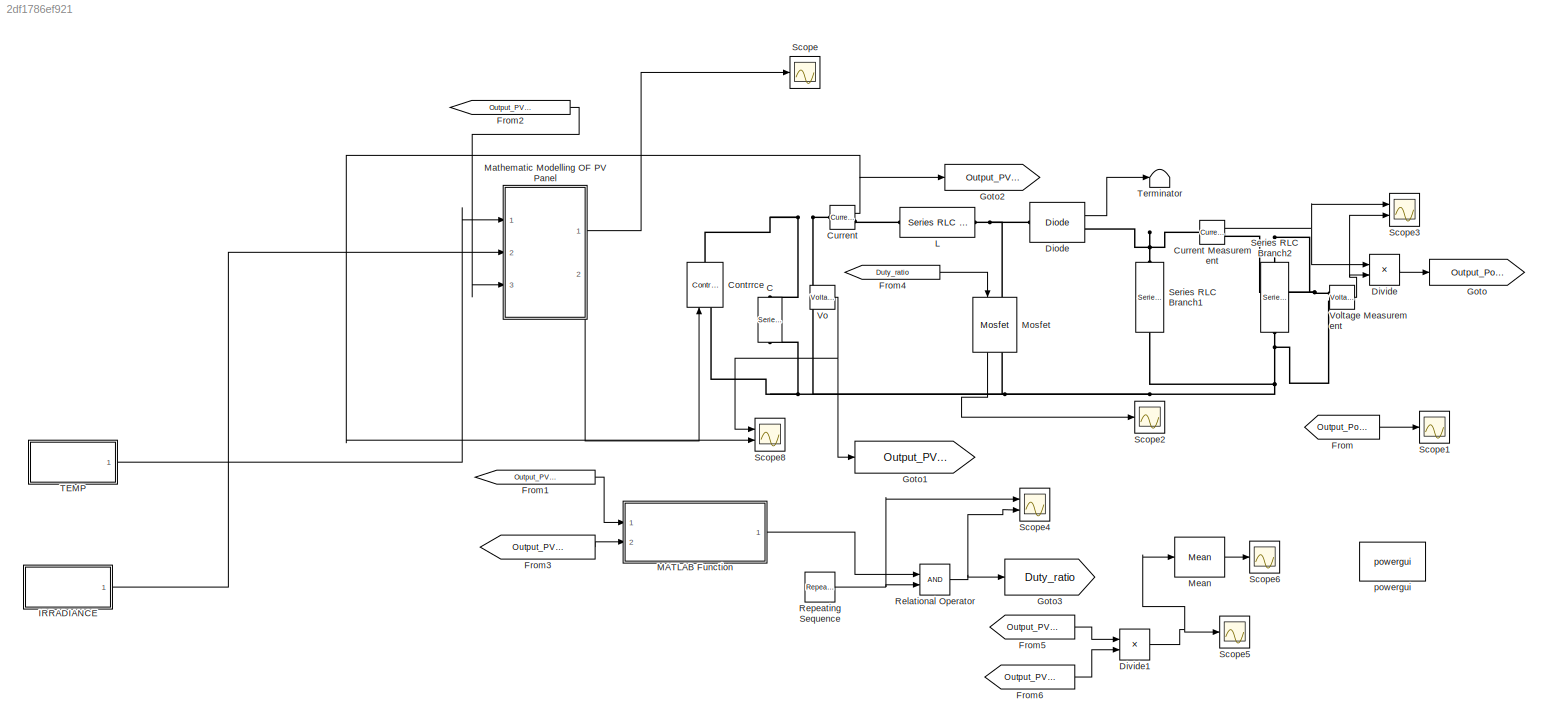
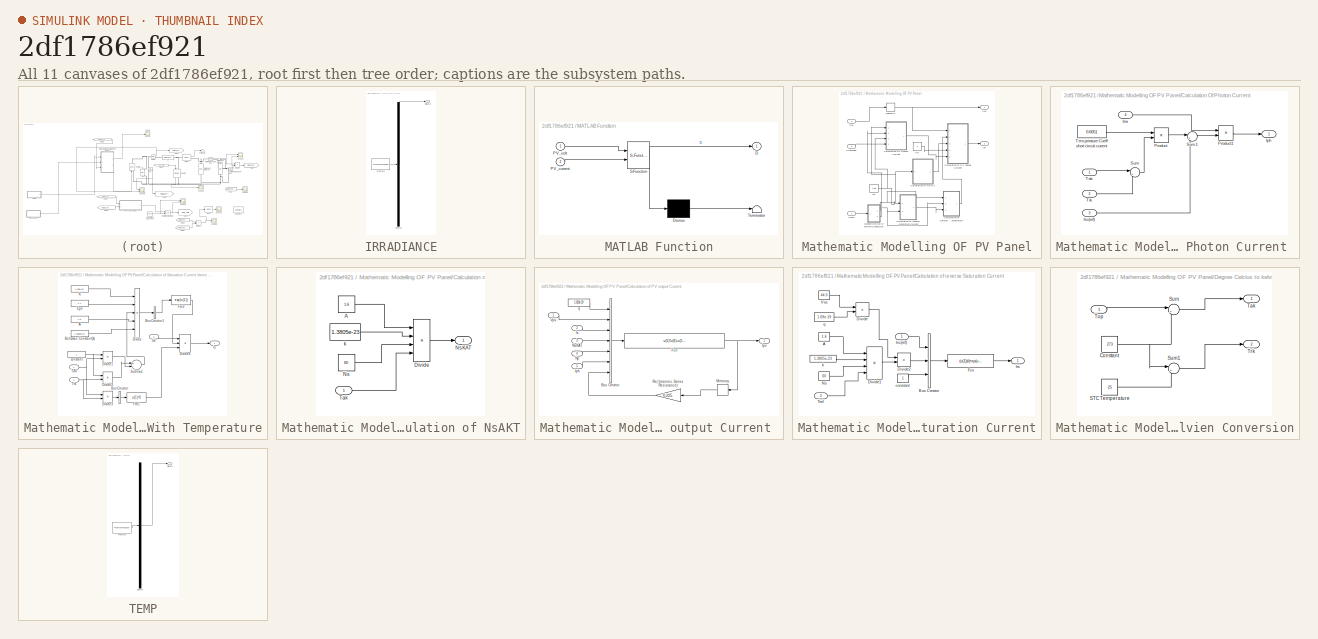
[diagram: thumbnail index - all 11 canvases of the model, root first then tree order]
MODEL slx_2df1786ef921
KIND model
CONFIG AbsTol = auto
CONFIG FixedStep = auto
CONFIG InitFcn = clc;\nclear all;\nD0=[];\n
CONFIG MaxStep = auto
CONFIG MinStep = auto
CONFIG RelTol = 1e-3
CONFIG SampleTimeConstraint = Unconstrained
CONFIG Solver = ode45
CONFIG SolverMode = Auto
CONFIG SolverName = ode45
CONFIG StartTime = 0.0
CONFIG StopTime = 3
BLOCK [Reference] C  REF=powerlib/Elements/Series RLC Branch
  Ports = [0, 0, 0, 0, 0, 1, 1]
  SourceBlock = powerlib/Elements/Series RLC Branch
  SourceType = Series RLC Branch
BLOCK [Reference] Contrrce  REF=powerlib/Electrical
Sources/Controlled Current Source
  Ports = [1, 0, 0, 0, 0, 1, 1]
  SourceBlock = powerlib/Electrical\nSources/Controlled Current Source
  SourceType = Controlled Current Source
BLOCK [Reference] Current   REF=powerlib/Measurements/Current Measurement
  Ports = [0, 1, 0, 0, 0, 1, 1]
  SourceBlock = powerlib/Measurements/Current Measurement
  SourceType = Current Measurement
  UserDataPersistent = on
BLOCK [Reference] Current Measurement  REF=powerlib/Measurements/Current Measurement
  Ports = [0, 1, 0, 0, 0, 1, 1]
  SourceBlock = powerlib/Measurements/Current Measurement
  SourceType = Current Measurement
  UserDataPersistent = on
BLOCK [Reference] Diode  REF=powerlib/Power
Electronics/Diode
  Ports = [0, 1, 0, 0, 0, 1, 1]
  SourceBlock = powerlib/Power\nElectronics/Diode
  SourceType = Diode
BLOCK [Product] Divide
  InputSameDT = off
  Inputs = **
  OutDataTypeStr = Inherit: Inherit via internal rule
  Ports = [2, 1]
  RndMeth = Floor
  SaturateOnIntegerOverflow = off
BLOCK [Product] Divide1
  InputSameDT = off
  Inputs = **
  OutDataTypeStr = Inherit: Inherit via internal rule
  Ports = [2, 1]
  RndMeth = Floor
  SaturateOnIntegerOverflow = off
BLOCK [From] From
  GotoTag = Output_Power
  TagVisibility = global
BLOCK [From] From1
  GotoTag = Output_PV_volt
  TagVisibility = global
BLOCK [From] From2
  GotoTag = Output_PV_volt
  TagVisibility = global
BLOCK [From] From3
  GotoTag = Output_PV_current
  TagVisibility = global
BLOCK [From] From4
  GotoTag = Duty_ratio
  TagVisibility = global
BLOCK [From] From5
  GotoTag = Output_PV_volt
  TagVisibility = global
BLOCK [From] From6
  GotoTag = Output_PV_current
  TagVisibility = global
BLOCK [Goto] Goto
  GotoTag = Output_Power
  TagVisibility = global
BLOCK [Goto] Goto1
  GotoTag = Output_PV_volt
  TagVisibility = global
BLOCK [Goto] Goto2
  GotoTag = Output_PV_current
  TagVisibility = global
BLOCK [Goto] Goto3
  GotoTag = Duty_ratio
  TagVisibility = global
BLOCK [SubSystem] IRRADIANCE
  ClipboardFcn = sigbuilder_block('clipboard');
  CloseFcn = sigbuilder_block('close');
  ContinueFcn = sigbuilder_block('continue');
  CopyFcn = sigbuilder_block('copy');
  DeleteFcn = sigbuilder_block('delete');
  LoadFcn = sigbuilder_block('load');
  MaskHideContents = on
  ModelCloseFcn = sigbuilder_block('modelClose');
  NameChangeFcn = sigbuilder_block('namechange');
  OpenFcn = sigbuilder_block('open',[6 28.2 1012.8 484.8 ]);
  PauseFcn = sigbuilder_block('pause');
  Ports = [0, 1]
  PreSaveFcn = sigbuilder_block('preSave');
  RequestExecContextInheritance = off
  StartFcn = sigbuilder_block('start');
  StopFcn = sigbuilder_block('stop');
  Tag = STV Subsys
  Variant = off
BLOCK [Demux] IRRADIANCE/Demux
  Outputs = 1
  Ports = [1, 1]
  Tag = STV Demux
BLOCK [FromWorkspace] IRRADIANCE/FromWs
  SampleTime = 0
  Tag = STV FromWs
  VariableName = tuvar
  ZeroCross = on
BLOCK [Outport] IRRADIANCE/Signal 2
  IconDisplay = Port number
  Tag = STV Outport
BLOCK [Reference] L  REF=powerlib/Elements/Series RLC Branch
  Ports = [0, 0, 0, 0, 0, 1, 1]
  SourceBlock = powerlib/Elements/Series RLC Branch
  SourceType = Series RLC Branch
BLOCK [SubSystem] MATLAB Function
  ErrorFcn = Stateflow.Translate.translate
  PermitHierarchicalResolution = ExplicitOnly
  Ports = [2, 1]
  RequestExecContextInheritance = off
  SFBlockType = MATLAB Function
  TreatAsAtomicUnit = on
  Variant = off
BLOCK [Demux] MATLAB Function/ Demux 
  Outputs = 1
  Ports = [1, 1]
BLOCK [S-Function] MATLAB Function/ SFunction 
  EnableBusSupport = on
  FunctionName = sf_sfun
  PortCounts = [2 2]
  Ports = [2, 2]
  SFunctionDeploymentMode = off
  Tag = Stateflow S-Function Simulation_02 2
BLOCK [Terminator] MATLAB Function/ Terminator 
BLOCK [Outport] MATLAB Function/D
  IconDisplay = Port number
BLOCK [Inport] MATLAB Function/PV_current
  IconDisplay = Port number
  Port = 2
BLOCK [Inport] MATLAB Function/PV_volt
  IconDisplay = Port number
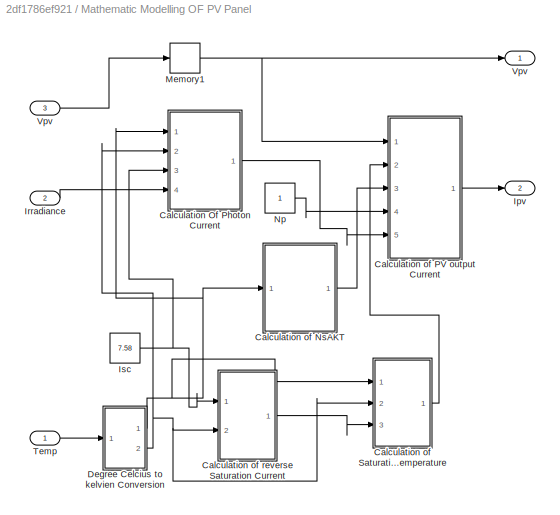
BLOCK [SubSystem] Mathematic Modelling OF PV Panel
  Ports = [3, 2]
  RequestExecContextInheritance = off
  Variant = off
BLOCK [SubSystem] Mathematic Modelling OF PV Panel/Calculation Of Photon Current 
  Ports = [4, 1]
  RequestExecContextInheritance = off
  Variant = off
BLOCK [Outport] Mathematic Modelling OF PV Panel/Calculation Of Photon Current /Iph
  IconDisplay = Port number
BLOCK [Inport] Mathematic Modelling OF PV Panel/Calculation Of Photon Current /Irra
  IconDisplay = Port number
  Port = 4
BLOCK [Inport] Mathematic Modelling OF PV Panel/Calculation Of Photon Current /Isc(ref)
  IconDisplay = Port number
  Port = 3
BLOCK [Product] Mathematic Modelling OF PV Panel/Calculation Of Photon Current /Product
  InputSameDT = off
  OutDataTypeStr = Inherit: Inherit via internal rule
  Ports = [2, 1]
  RndMeth = Floor
  SaturateOnIntegerOverflow = off
BLOCK [Product] Mathematic Modelling OF PV Panel/Calculation Of Photon Current /Product1
  InputSameDT = off
  OutDataTypeStr = Inherit: Inherit via internal rule
  Ports = [2, 1]
  RndMeth = Floor
  SaturateOnIntegerOverflow = off
BLOCK [Sum] Mathematic Modelling OF PV Panel/Calculation Of Photon Current /Sum
  IconShape = round
  InputSameDT = off
  Inputs = |+-
  OutDataTypeStr = Inherit: Inherit via internal rule
  Ports = [2, 1]
  SaturateOnIntegerOverflow = off
BLOCK [Sum] Mathematic Modelling OF PV Panel/Calculation Of Photon Current /Sum1
  IconShape = round
  InputSameDT = off
  Inputs = |++
  OutDataTypeStr = Inherit: Inherit via internal rule
  Ports = [2, 1]
  SaturateOnIntegerOverflow = off
BLOCK [Inport] Mathematic Modelling OF PV Panel/Calculation Of Photon Current /Tak
  IconDisplay = Port number
BLOCK [Constant] Mathematic Modelling OF PV Panel/Calculation Of Photon Current /Temperature Coeff short circuit current 
  Value = 0.0051
BLOCK [Inport] Mathematic Modelling OF PV Panel/Calculation Of Photon Current /Trk
  IconDisplay = Port number
  Port = 2
BLOCK [SubSystem] Mathematic Modelling OF PV Panel/Calculation of NsAKT
  Ports = [1, 1]
  RequestExecContextInheritance = off
  Variant = off
BLOCK [Constant] Mathematic Modelling OF PV Panel/Calculation of NsAKT/A
  Value = 1.6
BLOCK [Product] Mathematic Modelling OF PV Panel/Calculation of NsAKT/Divide
  InputSameDT = off
  Inputs = ****
  OutDataTypeStr = Inherit: Inherit via internal rule
  Ports = [4, 1]
  RndMeth = Floor
  SaturateOnIntegerOverflow = off
BLOCK [Constant] Mathematic Modelling OF PV Panel/Calculation of NsAKT/Ns
  Value = 60
BLOCK [Outport] Mathematic Modelling OF PV Panel/Calculation of NsAKT/NsKAT
  IconDisplay = Port number
BLOCK [Inport] Mathematic Modelling OF PV Panel/Calculation of NsAKT/Tak 
  IconDisplay = Port number
BLOCK [Constant] Mathematic Modelling OF PV Panel/Calculation of NsAKT/k
  Value = 1.3805e-23
BLOCK [SubSystem] Mathematic Modelling OF PV Panel/Calculation of PV output Current 
  Ports = [5, 1]
  RequestExecContextInheritance = off
  Variant = off
BLOCK [BusCreator] Mathematic Modelling OF PV Panel/Calculation of PV output Current /Bus Creator
  DisplayOption = bar
  InheritFromInputs = on
  Inputs = 7
  Ports = [7, 1]
BLOCK [Fcn] Mathematic Modelling OF PV Panel/Calculation of PV output Current /Fcn
  Expr = u(5)*u(6)-u(5)*u(3)*(exp((u(1)*(u(2)+u(7)))/(u(4))) - 1)
BLOCK [Inport] Mathematic Modelling OF PV Panel/Calculation of PV output Current /Iph
  IconDisplay = Port number
  Port = 5
BLOCK [Outport] Mathematic Modelling OF PV Panel/Calculation of PV output Current /Ipv 
  IconDisplay = Port number
BLOCK [Inport] Mathematic Modelling OF PV Panel/Calculation of PV output Current /Is
  IconDisplay = Port number
  Port = 2
BLOCK [Memory] Mathematic Modelling OF PV Panel/Calculation of PV output Current /Memory
BLOCK [Inport] Mathematic Modelling OF PV Panel/Calculation of PV output Current /Np
  IconDisplay = Port number
  Port = 4
BLOCK [Inport] Mathematic Modelling OF PV Panel/Calculation of PV output Current /NsKAT
  IconDisplay = Port number
  Port = 3
BLOCK [Gain] Mathematic Modelling OF PV Panel/Calculation of PV output Current /Rs( Internsic Series Resistance)
  Gain = 0.225
  OutDataTypeStr = Inherit: Inherit via internal rule
  ParamDataTypeStr = Inherit: Inherit via internal rule
  SaturateOnIntegerOverflow = off
BLOCK [Inport] Mathematic Modelling OF PV Panel/Calculation of PV output Current /Vpv
  IconDisplay = Port number
BLOCK [Constant] Mathematic Modelling OF PV Panel/Calculation of PV output Current /q
  Value = 1.619e-19
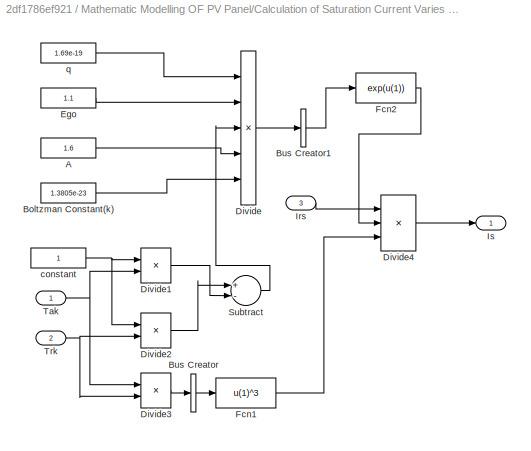
BLOCK [SubSystem] Mathematic Modelling OF PV Panel/Calculation of Saturation Current Varies With Temperature
  Ports = [3, 1]
  RequestExecContextInheritance = off
  Variant = off
BLOCK [Constant] Mathematic Modelling OF PV Panel/Calculation of Saturation Current Varies With Temperature/A 
  Value = 1.6
BLOCK [Constant] Mathematic Modelling OF PV Panel/Calculation of Saturation Current Varies With Temperature/Boltzman Constant(k)
  Value = 1.3805e-23
BLOCK [BusCreator] Mathematic Modelling OF PV Panel/Calculation of Saturation Current Varies With Temperature/Bus Creator
  DisplayOption = bar
  InheritFromInputs = on
  Inputs = 1
  Ports = [1, 1]
BLOCK [BusCreator] Mathematic Modelling OF PV Panel/Calculation of Saturation Current Varies With Temperature/Bus Creator1
  DisplayOption = bar
  InheritFromInputs = on
  Inputs = 1
  Ports = [1, 1]
BLOCK [Product] Mathematic Modelling OF PV Panel/Calculation of Saturation Current Varies With Temperature/Divide
  InputSameDT = off
  Inputs = ***//
  OutDataTypeStr = Inherit: Inherit via internal rule
  Ports = [5, 1]
  RndMeth = Floor
  SaturateOnIntegerOverflow = off
BLOCK [Product] Mathematic Modelling OF PV Panel/Calculation of Saturation Current Varies With Temperature/Divide1
  InputSameDT = off
  Inputs = */
  OutDataTypeStr = Inherit: Inherit via internal rule
  Ports = [2, 1]
  RndMeth = Floor
  SaturateOnIntegerOverflow = off
BLOCK [Product] Mathematic Modelling OF PV Panel/Calculation of Saturation Current Varies With Temperature/Divide2
  InputSameDT = off
  Inputs = */
  OutDataTypeStr = Inherit: Inherit via internal rule
  Ports = [2, 1]
  RndMeth = Floor
  SaturateOnIntegerOverflow = off
BLOCK [Product] Mathematic Modelling OF PV Panel/Calculation of Saturation Current Varies With Temperature/Divide3
  InputSameDT = off
  Inputs = */
  OutDataTypeStr = Inherit: Inherit via internal rule
  Ports = [2, 1]
  RndMeth = Floor
  SaturateOnIntegerOverflow = off
BLOCK [Product] Mathematic Modelling OF PV Panel/Calculation of Saturation Current Varies With Temperature/Divide4
  InputSameDT = off
  Inputs = ***
  OutDataTypeStr = Inherit: Inherit via internal rule
  Ports = [3, 1]
  RndMeth = Floor
  SaturateOnIntegerOverflow = off
BLOCK [Constant] Mathematic Modelling OF PV Panel/Calculation of Saturation Current Varies With Temperature/Ego
  Value = 1.1
BLOCK [Fcn] Mathematic Modelling OF PV Panel/Calculation of Saturation Current Varies With Temperature/Fcn1
  Expr = u(1)^3
BLOCK [Fcn] Mathematic Modelling OF PV Panel/Calculation of Saturation Current Varies With Temperature/Fcn2
  Expr = exp(u(1))
BLOCK [Inport] Mathematic Modelling OF PV Panel/Calculation of Saturation Current Varies With Temperature/Irs 
  IconDisplay = Port number
  Port = 3
BLOCK [Outport] Mathematic Modelling OF PV Panel/Calculation of Saturation Current Varies With Temperature/Is
  IconDisplay = Port number
BLOCK [Sum] Mathematic Modelling OF PV Panel/Calculation of Saturation Current Varies With Temperature/Subtract
  InputSameDT = off
  Inputs = +-
  OutDataTypeStr = Inherit: Inherit via internal rule
  Ports = [2, 1]
  SaturateOnIntegerOverflow = off
BLOCK [Inport] Mathematic Modelling OF PV Panel/Calculation of Saturation Current Varies With Temperature/Tak
  IconDisplay = Port number
BLOCK [Inport] Mathematic Modelling OF PV Panel/Calculation of Saturation Current Varies With Temperature/Trk 
  IconDisplay = Port number
  Port = 2
BLOCK [Constant] Mathematic Modelling OF PV Panel/Calculation of Saturation Current Varies With Temperature/constant 
BLOCK [Constant] Mathematic Modelling OF PV Panel/Calculation of Saturation Current Varies With Temperature/q 
  Value = 1.69e-19
BLOCK [SubSystem] Mathematic Modelling OF PV Panel/Calculation of reverse Saturation Current
  Ports = [2, 1]
  RequestExecContextInheritance = off
  Variant = off
BLOCK [Constant] Mathematic Modelling OF PV Panel/Calculation of reverse Saturation Current/A
  Value = 1.6
BLOCK [BusCreator] Mathematic Modelling OF PV Panel/Calculation of reverse Saturation Current/Bus Creator
  DisplayOption = bar
  InheritFromInputs = on
  Inputs = 3
  Ports = [3, 1]
BLOCK [Product] Mathematic Modelling OF PV Panel/Calculation of reverse Saturation Current/Divide
  InputSameDT = off
  Inputs = **
  OutDataTypeStr = Inherit: Inherit via internal rule
  Ports = [2, 1]
  RndMeth = Floor
  SaturateOnIntegerOverflow = off
BLOCK [Product] Mathematic Modelling OF PV Panel/Calculation of reverse Saturation Current/Divide1
  InputSameDT = off
  Inputs = ****
  OutDataTypeStr = Inherit: Inherit via internal rule
  Ports = [4, 1]
  RndMeth = Floor
  SaturateOnIntegerOverflow = off
BLOCK [Product] Mathematic Modelling OF PV Panel/Calculation of reverse Saturation Current/Divide2
  InputSameDT = off
  Inputs = */
  OutDataTypeStr = Inherit: Inherit via internal rule
  Ports = [2, 1]
  RndMeth = Floor
  SaturateOnIntegerOverflow = off
BLOCK [Fcn] Mathematic Modelling OF PV Panel/Calculation of reverse Saturation Current/Fcn
  Expr = (u(1))/(exp(u(2))-u(3))
BLOCK [Outport] Mathematic Modelling OF PV Panel/Calculation of reverse Saturation Current/Irs
  IconDisplay = Port number
BLOCK [Inport] Mathematic Modelling OF PV Panel/Calculation of reverse Saturation Current/Isc(ref) 
  IconDisplay = Port number
BLOCK [Constant] Mathematic Modelling OF PV Panel/Calculation of reverse Saturation Current/Ns
  Value = 60
BLOCK [Inport] Mathematic Modelling OF PV Panel/Calculation of reverse Saturation Current/Tref 
  IconDisplay = Port number
  Port = 2
BLOCK [Constant] Mathematic Modelling OF PV Panel/Calculation of reverse Saturation Current/Voc
  Value = 44.0
BLOCK [Constant] Mathematic Modelling OF PV Panel/Calculation of reverse Saturation Current/constant 
BLOCK [Constant] Mathematic Modelling OF PV Panel/Calculation of reverse Saturation Current/k
  Value = 1.3805e-23
BLOCK [Constant] Mathematic Modelling OF PV Panel/Calculation of reverse Saturation Current/q
  Value = 1.69e-19
BLOCK [SubSystem] Mathematic Modelling OF PV Panel/Degree Celcius to kelvien Conversion
  Ports = [1, 2]
  RequestExecContextInheritance = off
  Variant = off
BLOCK [Constant] Mathematic Modelling OF PV Panel/Degree Celcius to kelvien Conversion/Constant
  Value = 273
BLOCK [Constant] Mathematic Modelling OF PV Panel/Degree Celcius to kelvien Conversion/STC Temperature
  Value = 25
BLOCK [Sum] Mathematic Modelling OF PV Panel/Degree Celcius to kelvien Conversion/Sum
  IconShape = round
  InputSameDT = off
  Inputs = |++
  OutDataTypeStr = Inherit: Inherit via internal rule
  Ports = [2, 1]
  SaturateOnIntegerOverflow = off
BLOCK [Sum] Mathematic Modelling OF PV Panel/Degree Celcius to kelvien Conversion/Sum1
  IconShape = round
  InputSameDT = off
  Inputs = |++
  OutDataTypeStr = Inherit: Inherit via internal rule
  Ports = [2, 1]
  SaturateOnIntegerOverflow = off
BLOCK [Outport] Mathematic Modelling OF PV Panel/Degree Celcius to kelvien Conversion/Tak
  IconDisplay = Port number
BLOCK [Inport] Mathematic Modelling OF PV Panel/Degree Celcius to kelvien Conversion/Top 
  IconDisplay = Port number
BLOCK [Outport] Mathematic Modelling OF PV Panel/Degree Celcius to kelvien Conversion/Trk
  IconDisplay = Port number
  Port = 2
BLOCK [Outport] Mathematic Modelling OF PV Panel/Ipv
  IconDisplay = Port number
  Port = 2
BLOCK [Inport] Mathematic Modelling OF PV Panel/Irradiance
  IconDisplay = Port number
  Port = 2
BLOCK [Constant] Mathematic Modelling OF PV Panel/Isc
  Value = 7.58
BLOCK [Memory] Mathematic Modelling OF PV Panel/Memory1
BLOCK [Constant] Mathematic Modelling OF PV Panel/Np
BLOCK [Inport] Mathematic Modelling OF PV Panel/Temp
  IconDisplay = Port number
BLOCK [Inport] Mathematic Modelling OF PV Panel/Vpv
  IconDisplay = Port number
  Port = 3
BLOCK [Outport] Mathematic Modelling OF PV Panel/Vpv 
  IconDisplay = Port number
BLOCK [Reference] Mean  REF=powerlib_meascontrol/Measurements/Mean
  Ports = [1, 1]
  SourceBlock = powerlib_meascontrol/Measurements/Mean
  SourceType = Mean
BLOCK [Reference] Mosfet  REF=powerlib/Power
Electronics/Mosfet
  Ports = [1, 1, 0, 0, 0, 1, 1]
  SourceBlock = powerlib/Power\nElectronics/Mosfet
  SourceType = Mosfet
BLOCK [RelationalOperator] Relational Operator
  InputSameDT = off
  OutDataTypeStr = boolean
  Ports = [2, 1]
BLOCK [Reference] Repeating Sequence  REF=simulink/Sources/Repeating
Sequence
  Ports = [0, 1]
  SourceBlock = simulink/Sources/Repeating\nSequence
  SourceType = Repeating table
BLOCK [Scope] Scope
  Ports = [1]
  ScopeSpecificationString = C++SS(StrPVP('Location','[1, 55, 1921, 1079]'),StrPVP('Open','off'),MxPVP('AxesTitles',24,'struct(''axes1'',''%<SignalLabel>'')'),MxPVP('ScopeGraphics',28,'struct(''FigureColor'',''[0.5 0.5 0.5]'',''AxesColor'',''[0 0 0]'',''AxesTickColor'',''[1 1 1]'',''LineColors'',''[1 1 0;1 0 1;0 1 1;1 0 0;0 1 0;0 0 1]'',''LineStyles'',''-|-|-|-|-|-'',''LineWidths'',''[0.5 0.5 0.5 0.5 0.5 0.5]'',''MarkerStyles...<+280ch>
BLOCK [Scope] Scope1
  Ports = [1]
  ScopeSpecificationString = Simulink.scopes.TimeScopeBlockCfg('CurrentConfiguration', extmgr.ConfigurationSet(extmgr.Configuration('Core','General UI',true),extmgr.Configuration('Core','Source UI',true),extmgr.Configuration('Sources','WiredSimulink',true,'DataLoggingVariableName','ScopeData2','DataLoggingSaveFormat','StructureWithTime','DataLoggingDecimation','1','DataLoggingDecimateData',true),extmgr.Configuration('Visuals'...<+1711ch>
BLOCK [Scope] Scope2
  Ports = [1]
  ScopeSpecificationString = C++SS(StrPVP('Location','[6, 49, 1372, 727]'),StrPVP('Open','off'),MxPVP('AxesTitles',24,'struct(''axes1'',''%<SignalLabel>'')'),MxPVP('ScopeGraphics',28,'struct(''FigureColor'',''[0.5 0.5 0.5]'',''AxesColor'',''[0 0 0]'',''AxesTickColor'',''[1 1 1]'',''LineColors'',''[1 1 0;1 0 1;0 1 1;1 0 0;0 1 0;0 0 1]'',''LineStyles'',''-|-|-|-|-|-'',''LineWidths'',''[0.5 0.5 0.5 0.5 0.5 0.5]'',''MarkerStyles'...<+287ch>
BLOCK [Scope] Scope3
  NumInputPorts = 2
  Ports = [2]
  ScopeSpecificationString = C++SS(StrPVP('Location','[6, 49, 1372, 727]'),StrPVP('Open','off'),StrPVP('ZoomMode','xonly'),MxPVP('AxesTitles',24,'struct(''axes1'',''%<SignalLabel>'',''axes2'',''%<SignalLabel>'')'),MxPVP('ScopeGraphics',28,'struct(''FigureColor'',''[0.5 0.5 0.5]'',''AxesColor'',''[0 0 0]'',''AxesTickColor'',''[1 1 1]'',''LineColors'',''[1 1 0;1 0 1;0 1 1;1 0 0;0 1 0;0 0 1]'',''LineStyles'',''-|-|-|-|-|-'',''Li...<+346ch>
BLOCK [Scope] Scope4
  NumInputPorts = 2
  Ports = [2]
  ScopeSpecificationString = C++SS(StrPVP('Location','[6, 49, 1372, 727]'),StrPVP('Open','off'),StrPVP('ZoomMode','xonly'),MxPVP('AxesTitles',24,'struct(''axes1'',''%<SignalLabel>'',''axes2'',''%<SignalLabel>'')'),MxPVP('ScopeGraphics',28,'struct(''FigureColor'',''[0.5 0.5 0.5]'',''AxesColor'',''[0 0 0]'',''AxesTickColor'',''[1 1 1]'',''LineColors'',''[1 1 0;1 0 1;0 1 1;1 0 0;0 1 0;0 0 1]'',''LineStyles'',''-|-|-|-|-|-'',''Li...<+344ch>
BLOCK [Scope] Scope5
  Ports = [1]
  ScopeSpecificationString = C++SS(StrPVP('Location','[6, 49, 1372, 727]'),StrPVP('Open','off'),StrPVP('ZoomMode','yonly'),MxPVP('AxesTitles',24,'struct(''axes1'',''%<SignalLabel>'')'),MxPVP('ScopeGraphics',28,'struct(''FigureColor'',''[1 1 1]'',''AxesColor'',''[1 1 1]'',''AxesTickColor'',''[0 0 0]'',''LineColors'',''[0 0 0;1 0 1;0 1 1;1 0 0;0 1 0;0 0 1]'',''LineStyles'',''-|-|-|-|-|-'',''LineWidths'',''[2 0.5 0.5 0.5 0.5 0.5...<+326ch>
BLOCK [Scope] Scope6
  Ports = [1]
  ScopeSpecificationString = C++SS(StrPVP('Location','[6, 57, 687, 726]'),StrPVP('Open','off'),StrPVP('ZoomMode','xonly'),MxPVP('AxesTitles',24,'struct(''axes1'',''%<SignalLabel>'')'),MxPVP('ScopeGraphics',28,'struct(''FigureColor'',''[0.5 0.5 0.5]'',''AxesColor'',''[0 0 0]'',''AxesTickColor'',''[1 1 1]'',''LineColors'',''[1 1 0;1 0 1;0 1 1;1 0 0;0 1 0;0 0 1]'',''LineStyles'',''-|-|-|-|-|-'',''LineWidths'',''[0.5 0.5 0.5 0.5 ...<+335ch>
BLOCK [Scope] Scope8
  NumInputPorts = 2
  Ports = [2]
  ScopeSpecificationString = C++SS(StrPVP('Location','[1, 55, 1921, 1079]'),StrPVP('Open','off'),StrPVP('ZoomMode','xonly'),MxPVP('AxesTitles',24,'struct(''axes1'',''%<SignalLabel>'',''axes2'',''%<SignalLabel>'')'),MxPVP('ScopeGraphics',28,'struct(''FigureColor'',''[0.5 0.5 0.5]'',''AxesColor'',''[0 0 0]'',''AxesTickColor'',''[1 1 1]'',''LineColors'',''[1 1 0;1 0 1;0 1 1;1 0 0;0 1 0;0 0 1]'',''LineStyles'',''-|-|-|-|-|-'',''L...<+362ch>
BLOCK [Reference] Series RLC Branch1  REF=powerlib/Elements/Series RLC Branch
  Ports = [0, 0, 0, 0, 0, 1, 1]
  SourceBlock = powerlib/Elements/Series RLC Branch
  SourceType = Series RLC Branch
BLOCK [Reference] Series RLC Branch2  REF=powerlib/Elements/Series RLC Branch
  Ports = [0, 0, 0, 0, 0, 1, 1]
  SourceBlock = powerlib/Elements/Series RLC Branch
  SourceType = Series RLC Branch
BLOCK [SubSystem] TEMP
  ClipboardFcn = sigbuilder_block('clipboard');
  CloseFcn = sigbuilder_block('close');
  ContinueFcn = sigbuilder_block('continue');
  CopyFcn = sigbuilder_block('copy');
  DeleteFcn = sigbuilder_block('delete');
  LoadFcn = sigbuilder_block('load');
  MaskHideContents = on
  ModelCloseFcn = sigbuilder_block('modelClose');
  NameChangeFcn = sigbuilder_block('namechange');
  OpenFcn = sigbuilder_block('open',[6 28.2 1012.8 484.8 ]);
  PauseFcn = sigbuilder_block('pause');
  Ports = [0, 1]
  PreSaveFcn = sigbuilder_block('preSave');
  RequestExecContextInheritance = off
  StartFcn = sigbuilder_block('start');
  StopFcn = sigbuilder_block('stop');
  Tag = STV Subsys
  Variant = off
BLOCK [Demux] TEMP/Demux
  Outputs = 1
  Ports = [1, 1]
  Tag = STV Demux
BLOCK [FromWorkspace] TEMP/FromWs
  SampleTime = 0
  Tag = STV FromWs
  VariableName = tuvar
  ZeroCross = on
BLOCK [Outport] TEMP/Signal 1
  IconDisplay = Port number
  Tag = STV Outport
BLOCK [Terminator] Terminator
BLOCK [Reference] Vo  REF=powerlib/Measurements/Voltage Measurement
  Ports = [0, 1, 0, 0, 0, 2]
  SourceBlock = powerlib/Measurements/Voltage Measurement
  SourceType = Voltage Measurement
  UserDataPersistent = on
BLOCK [Reference] Voltage Measurement  REF=powerlib/Measurements/Voltage Measurement
  Ports = [0, 1, 0, 0, 0, 2]
  SourceBlock = powerlib/Measurements/Voltage Measurement
  SourceType = Voltage Measurement
  UserDataPersistent = on
BLOCK [Reference] powergui  REF=powerlib/powergui
  Ports = []
  Priority = 1
  SourceBlock = powerlib/powergui
  SourceType = PSB option menu block
  UserDataPersistent = on
NET Current :1 -> Goto2:1, Scope8:2
NET Current Measurement:1 -> Divide:1, Scope3:1
LINE Diode:1 -> Terminator:1
NET Divide1:1 -> Mean:1, Scope5:1
LINE Divide:1 -> Goto:1
LINE From1:1 -> MATLAB Function:1
LINE From2:1 -> Mathematic Modelling OF PV Panel:3
LINE From3:1 -> MATLAB Function:2
LINE From4:1 -> Mosfet:1
LINE From5:1 -> Divide1:1
LINE From6:1 -> Divide1:2
LINE From:1 -> Scope1:1
LINE IRRADIANCE:1 -> Mathematic Modelling OF PV Panel:2
LINE MATLAB Function:1 -> Relational Operator:1
LINE Mathematic Modelling OF PV Panel/Calculation Of Photon Current /Irra:1 -> Mathematic Modelling OF PV Panel/Calculation Of Photon Current /Product1:1
LINE Mathematic Modelling OF PV Panel/Calculation Of Photon Current /Isc(ref):1 -> Mathematic Modelling OF PV Panel/Calculation Of Photon Current /Sum1:2
LINE Mathematic Modelling OF PV Panel/Calculation Of Photon Current /Product1:1 -> Mathematic Modelling OF PV Panel/Calculation Of Photon Current /Iph:1
LINE Mathematic Modelling OF PV Panel/Calculation Of Photon Current /Product:1 -> Mathematic Modelling OF PV Panel/Calculation Of Photon Current /Sum1:1
LINE Mathematic Modelling OF PV Panel/Calculation Of Photon Current /Sum1:1 -> Mathematic Modelling OF PV Panel/Calculation Of Photon Current /Product1:2
LINE Mathematic Modelling OF PV Panel/Calculation Of Photon Current /Sum:1 -> Mathematic Modelling OF PV Panel/Calculation Of Photon Current /Product:2
LINE Mathematic Modelling OF PV Panel/Calculation Of Photon Current /Tak:1 -> Mathematic Modelling OF PV Panel/Calculation Of Photon Current /Sum:1
LINE Mathematic Modelling OF PV Panel/Calculation Of Photon Current /Temperature Coeff short circuit current :1 -> Mathematic Modelling OF PV Panel/Calculation Of Photon Current /Product:1
LINE Mathematic Modelling OF PV Panel/Calculation Of Photon Current /Trk:1 -> Mathematic Modelling OF PV Panel/Calculation Of Photon Current /Sum:2
LINE Mathematic Modelling OF PV Panel/Calculation Of Photon Current :1 -> Mathematic Modelling OF PV Panel/Calculation of PV output Current :5
LINE Mathematic Modelling OF PV Panel/Calculation of NsAKT/A:1 -> Mathematic Modelling OF PV Panel/Calculation of NsAKT/Divide:1
LINE Mathematic Modelling OF PV Panel/Calculation of NsAKT/Divide:1 -> Mathematic Modelling OF PV Panel/Calculation of NsAKT/NsKAT:1
LINE Mathematic Modelling OF PV Panel/Calculation of NsAKT/Ns:1 -> Mathematic Modelling OF PV Panel/Calculation of NsAKT/Divide:3
LINE Mathematic Modelling OF PV Panel/Calculation of NsAKT/Tak :1 -> Mathematic Modelling OF PV Panel/Calculation of NsAKT/Divide:4
LINE Mathematic Modelling OF PV Panel/Calculation of NsAKT/k:1 -> Mathematic Modelling OF PV Panel/Calculation of NsAKT/Divide:2
LINE Mathematic Modelling OF PV Panel/Calculation of NsAKT:1 -> Mathematic Modelling OF PV Panel/Calculation of PV output Current :3
LINE Mathematic Modelling OF PV Panel/Calculation of PV output Current /Bus Creator:1 -> Mathematic Modelling OF PV Panel/Calculation of PV output Current /Fcn:1
NET Mathematic Modelling OF PV Panel/Calculation of PV output Current /Fcn:1 -> Mathematic Modelling OF PV Panel/Calculation of PV output Current /Ipv :1, Mathematic Modelling OF PV Panel/Calculation of PV output Current /Memory:1
LINE Mathematic Modelling OF PV Panel/Calculation of PV output Current /Iph:1 -> Mathematic Modelling OF PV Panel/Calculation of PV output Current /Bus Creator:6
LINE Mathematic Modelling OF PV Panel/Calculation of PV output Current /Is:1 -> Mathematic Modelling OF PV Panel/Calculation of PV output Current /Bus Creator:3
LINE Mathematic Modelling OF PV Panel/Calculation of PV output Current /Memory:1 -> Mathematic Modelling OF PV Panel/Calculation of PV output Current /Rs( Internsic Series Resistance):1
LINE Mathematic Modelling OF PV Panel/Calculation of PV output Current /Np:1 -> Mathematic Modelling OF PV Panel/Calculation of PV output Current /Bus Creator:5
LINE Mathematic Modelling OF PV Panel/Calculation of PV output Current /NsKAT:1 -> Mathematic Modelling OF PV Panel/Calculation of PV output Current /Bus Creator:4
LINE Mathematic Modelling OF PV Panel/Calculation of PV output Current /Rs( Internsic Series Resistance):1 -> Mathematic Modelling OF PV Panel/Calculation of PV output Current /Bus Creator:7
LINE Mathematic Modelling OF PV Panel/Calculation of PV output Current /Vpv:1 -> Mathematic Modelling OF PV Panel/Calculation of PV output Current /Bus Creator:2
LINE Mathematic Modelling OF PV Panel/Calculation of PV output Current /q:1 -> Mathematic Modelling OF PV Panel/Calculation of PV output Current /Bus Creator:1
LINE Mathematic Modelling OF PV Panel/Calculation of PV output Current :1 -> Mathematic Modelling OF PV Panel/Ipv:1
LINE Mathematic Modelling OF PV Panel/Calculation of Saturation Current Varies With Temperature/A :1 -> Mathematic Modelling OF PV Panel/Calculation of Saturation Current Varies With Temperature/Divide:4
LINE Mathematic Modelling OF PV Panel/Calculation of Saturation Current Varies With Temperature/Boltzman Constant(k):1 -> Mathematic Modelling OF PV Panel/Calculation of Saturation Current Varies With Temperature/Divide:5
LINE Mathematic Modelling OF PV Panel/Calculation of Saturation Current Varies With Temperature/Bus Creator1:1 -> Mathematic Modelling OF PV Panel/Calculation of Saturation Current Varies With Temperature/Fcn2:1
LINE Mathematic Modelling OF PV Panel/Calculation of Saturation Current Varies With Temperature/Bus Creator:1 -> Mathematic Modelling OF PV Panel/Calculation of Saturation Current Varies With Temperature/Fcn1:1
LINE Mathematic Modelling OF PV Panel/Calculation of Saturation Current Varies With Temperature/Divide1:1 -> Mathematic Modelling OF PV Panel/Calculation of Saturation Current Varies With Temperature/Subtract:2
LINE Mathematic Modelling OF PV Panel/Calculation of Saturation Current Varies With Temperature/Divide2:1 -> Mathematic Modelling OF PV Panel/Calculation of Saturation Current Varies With Temperature/Subtract:1
LINE Mathematic Modelling OF PV Panel/Calculation of Saturation Current Varies With Temperature/Divide3:1 -> Mathematic Modelling OF PV Panel/Calculation of Saturation Current Varies With Temperature/Bus Creator:1
LINE Mathematic Modelling OF PV Panel/Calculation of Saturation Current Varies With Temperature/Divide4:1 -> Mathematic Modelling OF PV Panel/Calculation of Saturation Current Varies With Temperature/Is:1
LINE Mathematic Modelling OF PV Panel/Calculation of Saturation Current Varies With Temperature/Divide:1 -> Mathematic Modelling OF PV Panel/Calculation of Saturation Current Varies With Temperature/Bus Creator1:1
LINE Mathematic Modelling OF PV Panel/Calculation of Saturation Current Varies With Temperature/Ego:1 -> Mathematic Modelling OF PV Panel/Calculation of Saturation Current Varies With Temperature/Divide:2
LINE Mathematic Modelling OF PV Panel/Calculation of Saturation Current Varies With Temperature/Fcn1:1 -> Mathematic Modelling OF PV Panel/Calculation of Saturation Current Varies With Temperature/Divide4:3
LINE Mathematic Modelling OF PV Panel/Calculation of Saturation Current Varies With Temperature/Fcn2:1 -> Mathematic Modelling OF PV Panel/Calculation of Saturation Current Varies With Temperature/Divide4:2
LINE Mathematic Modelling OF PV Panel/Calculation of Saturation Current Varies With Temperature/Irs :1 -> Mathematic Modelling OF PV Panel/Calculation of Saturation Current Varies With Temperature/Divide4:1
LINE Mathematic Modelling OF PV Panel/Calculation of Saturation Current Varies With Temperature/Subtract:1 -> Mathematic Modelling OF PV Panel/Calculation of Saturation Current Varies With Temperature/Divide:3
NET Mathematic Modelling OF PV Panel/Calculation of Saturation Current Varies With Temperature/Tak:1 -> Mathematic Modelling OF PV Panel/Calculation of Saturation Current Varies With Temperature/Divide1:2, Mathematic Modelling OF PV Panel/Calculation of Saturation Current Varies With Temperature/Divide3:1
NET Mathematic Modelling OF PV Panel/Calculation of Saturation Current Varies With Temperature/Trk :1 -> Mathematic Modelling OF PV Panel/Calculation of Saturation Current Varies With Temperature/Divide2:2, Mathematic Modelling OF PV Panel/Calculation of Saturation Current Varies With Temperature/Divide3:2
NET Mathematic Modelling OF PV Panel/Calculation of Saturation Current Varies With Temperature/constant :1 -> Mathematic Modelling OF PV Panel/Calculation of Saturation Current Varies With Temperature/Divide1:1, Mathematic Modelling OF PV Panel/Calculation of Saturation Current Varies With Temperature/Divide2:1
LINE Mathematic Modelling OF PV Panel/Calculation of Saturation Current Varies With Temperature/q :1 -> Mathematic Modelling OF PV Panel/Calculation of Saturation Current Varies With Temperature/Divide:1
LINE Mathematic Modelling OF PV Panel/Calculation of Saturation Current Varies With Temperature:1 -> Mathematic Modelling OF PV Panel/Calculation of PV output Current :2
LINE Mathematic Modelling OF PV Panel/Calculation of reverse Saturation Current/A:1 -> Mathematic Modelling OF PV Panel/Calculation of reverse Saturation Current/Divide1:1
LINE Mathematic Modelling OF PV Panel/Calculation of reverse Saturation Current/Bus Creator:1 -> Mathematic Modelling OF PV Panel/Calculation of reverse Saturation Current/Fcn:1
LINE Mathematic Modelling OF PV Panel/Calculation of reverse Saturation Current/Divide1:1 -> Mathematic Modelling OF PV Panel/Calculation of reverse Saturation Current/Divide2:2
LINE Mathematic Modelling OF PV Panel/Calculation of reverse Saturation Current/Divide2:1 -> Mathematic Modelling OF PV Panel/Calculation of reverse Saturation Current/Bus Creator:2
LINE Mathematic Modelling OF PV Panel/Calculation of reverse Saturation Current/Divide:1 -> Mathematic Modelling OF PV Panel/Calculation of reverse Saturation Current/Divide2:1
LINE Mathematic Modelling OF PV Panel/Calculation of reverse Saturation Current/Fcn:1 -> Mathematic Modelling OF PV Panel/Calculation of reverse Saturation Current/Irs:1
LINE Mathematic Modelling OF PV Panel/Calculation of reverse Saturation Current/Isc(ref) :1 -> Mathematic Modelling OF PV Panel/Calculation of reverse Saturation Current/Bus Creator:1
LINE Mathematic Modelling OF PV Panel/Calculation of reverse Saturation Current/Ns:1 -> Mathematic Modelling OF PV Panel/Calculation of reverse Saturation Current/Divide1:3
LINE Mathematic Modelling OF PV Panel/Calculation of reverse Saturation Current/Tref :1 -> Mathematic Modelling OF PV Panel/Calculation of reverse Saturation Current/Divide1:4
LINE Mathematic Modelling OF PV Panel/Calculation of reverse Saturation Current/Voc:1 -> Mathematic Modelling OF PV Panel/Calculation of reverse Saturation Current/Divide:1
LINE Mathematic Modelling OF PV Panel/Calculation of reverse Saturation Current/constant :1 -> Mathematic Modelling OF PV Panel/Calculation of reverse Saturation Current/Bus Creator:3
LINE Mathematic Modelling OF PV Panel/Calculation of reverse Saturation Current/k:1 -> Mathematic Modelling OF PV Panel/Calculation of reverse Saturation Current/Divide1:2
LINE Mathematic Modelling OF PV Panel/Calculation of reverse Saturation Current/q:1 -> Mathematic Modelling OF PV Panel/Calculation of reverse Saturation Current/Divide:2
LINE Mathematic Modelling OF PV Panel/Calculation of reverse Saturation Current:1 -> Mathematic Modelling OF PV Panel/Calculation of Saturation Current Varies With Temperature:3
NET Mathematic Modelling OF PV Panel/Degree Celcius to kelvien Conversion/Constant:1 -> Mathematic Modelling OF PV Panel/Degree Celcius to kelvien Conversion/Sum1:1, Mathematic Modelling OF PV Panel/Degree Celcius to kelvien Conversion/Sum:2
LINE Mathematic Modelling OF PV Panel/Degree Celcius to kelvien Conversion/STC Temperature:1 -> Mathematic Modelling OF PV Panel/Degree Celcius to kelvien Conversion/Sum1:2
LINE Mathematic Modelling OF PV Panel/Degree Celcius to kelvien Conversion/Sum1:1 -> Mathematic Modelling OF PV Panel/Degree Celcius to kelvien Conversion/Trk:1
LINE Mathematic Modelling OF PV Panel/Degree Celcius to kelvien Conversion/Sum:1 -> Mathematic Modelling OF PV Panel/Degree Celcius to kelvien Conversion/Tak:1
LINE Mathematic Modelling OF PV Panel/Degree Celcius to kelvien Conversion/Top :1 -> Mathematic Modelling OF PV Panel/Degree Celcius to kelvien Conversion/Sum:1
NET Mathematic Modelling OF PV Panel/Degree Celcius to kelvien Conversion:1 -> Mathematic Modelling OF PV Panel/Calculation Of Photon Current :1, Mathematic Modelling OF PV Panel/Calculation of NsAKT:1, Mathematic Modelling OF PV Panel/Calculation of Saturation Current Varies With Temperature:1
NET Mathematic Modelling OF PV Panel/Degree Celcius to kelvien Conversion:2 -> Mathematic Modelling OF PV Panel/Calculation Of Photon Current :2, Mathematic Modelling OF PV Panel/Calculation of Saturation Current Varies With Temperature:2, Mathematic Modelling OF PV Panel/Calculation of reverse Saturation Current:2
LINE Mathematic Modelling OF PV Panel/Irradiance:1 -> Mathematic Modelling OF PV Panel/Calculation Of Photon Current :4
NET Mathematic Modelling OF PV Panel/Isc:1 -> Mathematic Modelling OF PV Panel/Calculation Of Photon Current :3, Mathematic Modelling OF PV Panel/Calculation of reverse Saturation Current:1
NET Mathematic Modelling OF PV Panel/Memory1:1 -> Mathematic Modelling OF PV Panel/Calculation of PV output Current :1, Mathematic Modelling OF PV Panel/Vpv :1
LINE Mathematic Modelling OF PV Panel/Np:1 -> Mathematic Modelling OF PV Panel/Calculation of PV output Current :4
LINE Mathematic Modelling OF PV Panel/Temp:1 -> Mathematic Modelling OF PV Panel/Degree Celcius to kelvien Conversion:1
LINE Mathematic Modelling OF PV Panel/Vpv:1 -> Mathematic Modelling OF PV Panel/Memory1:1
LINE Mathematic Modelling OF PV Panel:1 -> Scope:1
LINE Mathematic Modelling OF PV Panel:2 -> Contrrce:1
LINE Mean:1 -> Scope6:1
LINE Mosfet:1 -> Scope2:1
NET Relational Operator:1 -> Goto3:1, Scope4:2
NET Repeating Sequence:1 -> Relational Operator:2, Scope4:1
LINE TEMP:1 -> Mathematic Modelling OF PV Panel:1
NET Vo:1 -> Goto1:1, Scope8:1
NET Voltage Measurement:1 -> Divide:2, Scope3:2
PNET net1: C:LConn1 -- Contrrce:RConn1 -- Current :LConn1 -- Vo:LConn1
PNET net2: C:RConn1 -- Contrrce:LConn1 -- Mosfet:RConn1 -- Series RLC Branch1:RConn1 -- Series RLC Branch2:RConn1 -- Vo:LConn2 -- Voltage Measurement:LConn2
PLINE Current :RConn1 -- L:LConn1
PNET net3: Current Measurement:LConn1 -- Diode:RConn1 -- Series RLC Branch1:LConn1
PNET net4: Current Measurement:RConn1 -- Series RLC Branch2:LConn1 -- Voltage Measurement:LConn1
PNET net5: Diode:LConn1 -- L:RConn1 -- Mosfet:LConn1
note: NET lines group one-source signal fan-out (src -> all destinations, sorted); 1:1 wires keep LINE; PNET lines group multi-terminal physical nets as a canonical sorted terminal list (undirected conserving connections); 2-terminal nets keep the pairwise PLINE form
CHART MATLAB Function states=1 transitions=1
  STATE_LABEL 'eML_blk_kernel()'
  STATE_LABEL 'SCRIPT:\nfunction D   = fcn(PV_volt,PV_current)\n%#codegen\npersistent V1 I1 V0 I0 D0 \n\nif isempty(D0)\nV0 = 0;\nI0 = 0;\nD0 = 0.60;\nend\n\n\nP0 = V0*I0;\nV1 = PV_volt;\nI1 = PV_current;\nP1=V1*I1;\n\nif(P1>=P0)\n    if(V1>=V0)\n        D0=D0-0.001;\n    else\n        D0=D0+0.001;\n    end\nend\nif(P1<P0)\n    if(V1>=V0)\n        D0=D0+0.001;\n    else\n        D0=D0-0.001;\n    end\nend\nD=D0;\nV0=V1;\nI0=I1;\n\nend\n\n'
